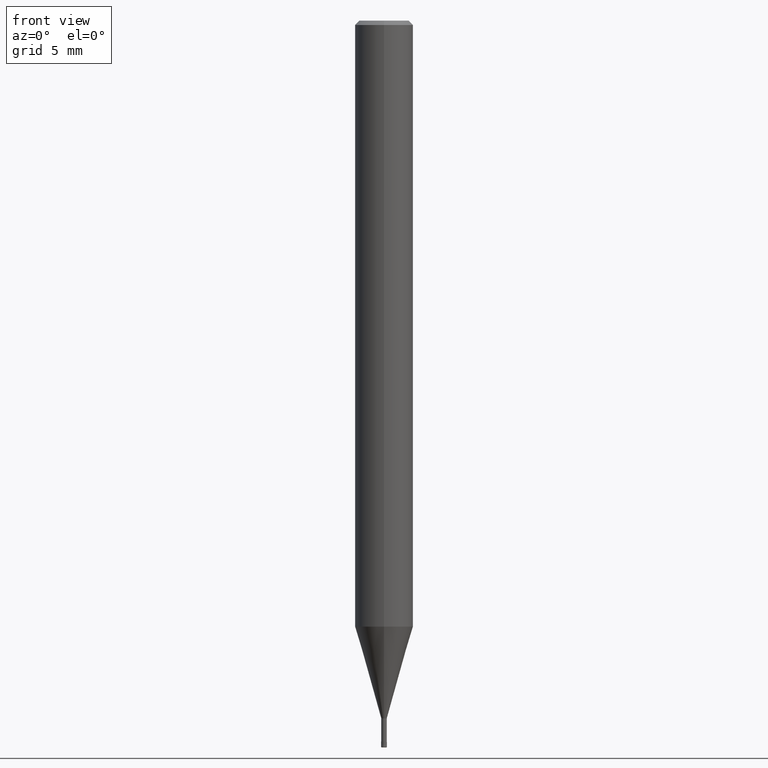
[diagram: clean part render]
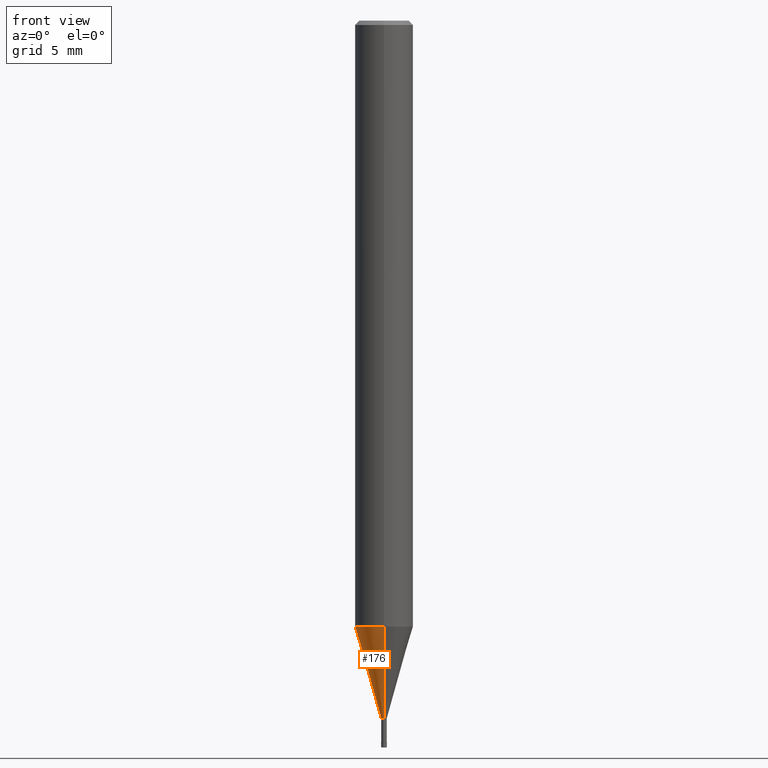
[diagram: same view with one face highlighted and labeled with its STEP entity id]
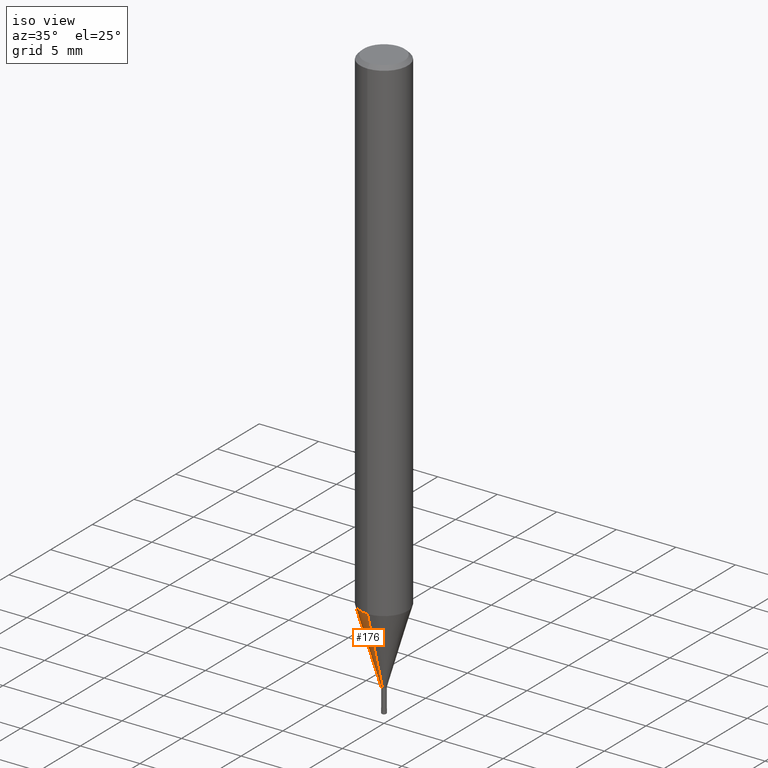
[diagram: same view with one face highlighted and labeled with its STEP entity id]
A machine part, front view. The second image highlights one B-rep face of the part: STEP entity #176.
A second angle (iso view) of the same face is appended — the face is thin or edge-on in the first view.
In plain terms, the highlighted conical surface has half-angle 16.001 deg.
Its self-contained STEP definition (entity closure, byte-faithful):
#114=EDGE_CURVE('',#192,#148,#269,.T.);
#128=EDGE_CURVE('',#222,#192,#285,.T.);
#136=EDGE_CURVE('',#158,#148,#293,.T.);
#148=VERTEX_POINT('',#307);
#158=VERTEX_POINT('',#317);
#176=ADVANCED_FACE('',(#337),#338,.T.);
#192=VERTEX_POINT('',#355);
#222=VERTEX_POINT('',#392);
#224=EDGE_CURVE('',#158,#222,#394,.T.);
#269=LINE('',#439,#440);
#285=CIRCLE('',#461,1.99995);
#293=CIRCLE('',#473,0.18995);
#307=CARTESIAN_POINT('',(0.0,0.18995,-48.0));
#317=CARTESIAN_POINT('',(2.3261397690856E-017,-0.18995,-48.0));
#337=FACE_OUTER_BOUND('',#525,.T.);
#338=CONICAL_SURFACE('',#526,1.09495,0.279261921280279);
#355=CARTESIAN_POINT('',(0.0,1.99995,-41.688));
#392=CARTESIAN_POINT('',(2.44915147732706E-016,-1.99995,-41.688));
#394=LINE('',#595,#596);
#439=CARTESIAN_POINT('',(-1.34088272711781E-016,1.09495,-44.844));
#440=VECTOR('',#627,1.0);
#461=AXIS2_PLACEMENT_3D('',#649,#650,#651);
#473=AXIS2_PLACEMENT_3D('',#656,#657,#658);
#525=EDGE_LOOP('',(#715,#716,#717,#718));
#526=AXIS2_PLACEMENT_3D('',#719,#720,#721);
#595=CARTESIAN_POINT('',(1.34088272711781E-016,-1.09495,-44.844));
#596=VECTOR('',#796,1.0);
#627=DIRECTION('',(3.37558135426109E-017,-0.275646238787252,-0.961259148743169));
#649=CARTESIAN_POINT('',(0.0,0.0,-41.688));
#650=DIRECTION('',(0.0,0.0,-1.0));
#651=DIRECTION('',(0.0,1.0,0.0));
#656=CARTESIAN_POINT('',(0.0,0.0,-48.0));
#657=DIRECTION('',(0.0,0.0,-1.0));
#658=DIRECTION('',(0.0,1.0,0.0));
#715=ORIENTED_EDGE('',*,*,#114,.T.);
#716=ORIENTED_EDGE('',*,*,#136,.F.);
#717=ORIENTED_EDGE('',*,*,#224,.T.);
#718=ORIENTED_EDGE('',*,*,#128,.T.);
#719=CARTESIAN_POINT('',(0.0,0.0,-44.844));
#720=DIRECTION('',(-0.0,-0.0,1.0));
#721=DIRECTION('',(0.0,1.0,0.0));
#796=DIRECTION('',(3.37558135426109E-017,-0.275646238787252,0.961259148743169));